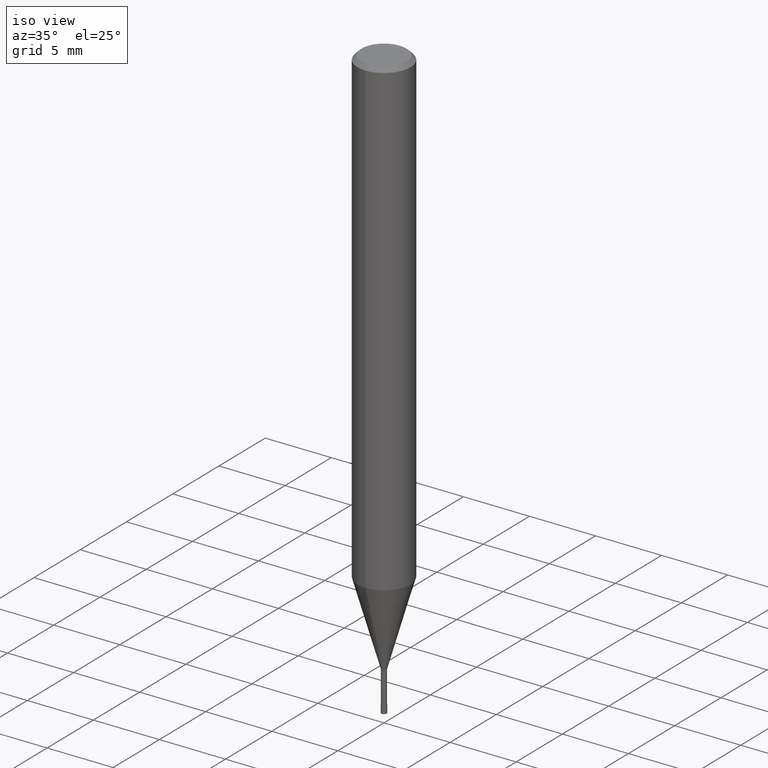
[diagram: clean part render]
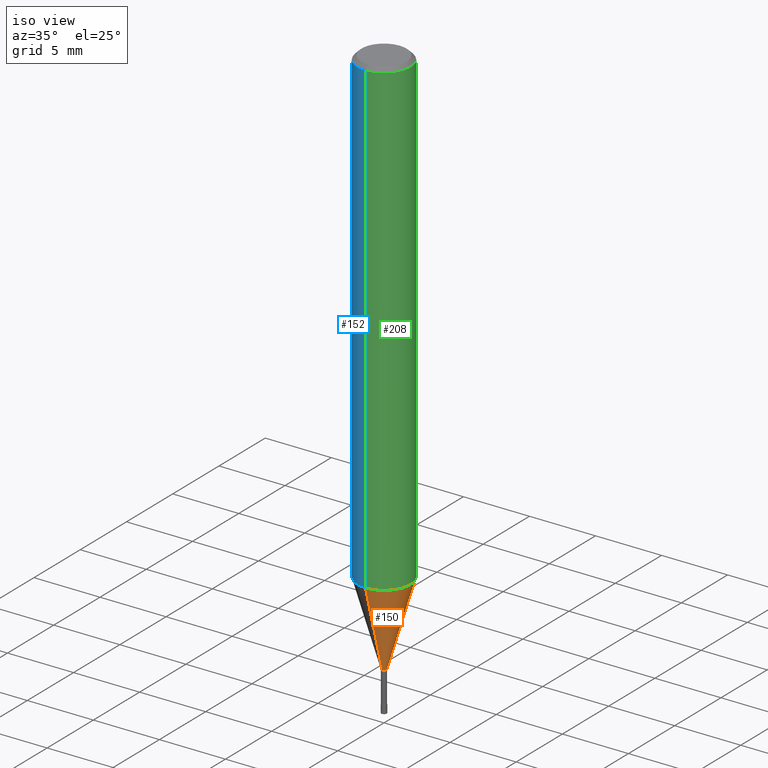
[diagram: same view with three faces highlighted in distinct colors, each labeled with its STEP entity id]
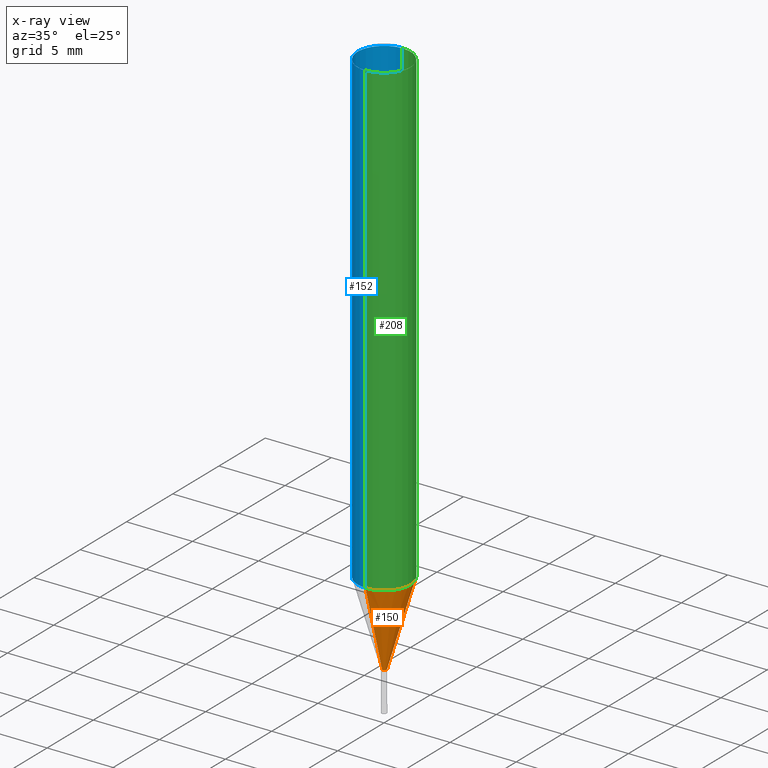
[diagram: x-ray of the same camera — body ghosted, the three highlighted faces saturated]
A machine part, iso view with three faces highlighted in distinct colors.
The next image is the same camera in x-ray (body ghosted, the three faces saturated) — at least one of them is partly hidden behind the body in this view.
Their STEP definitions:

[orange] entity #150 — the highlighted conical surface has half-angle 16.001 deg.
#108=VERTEX_POINT('',#247);
#120=VERTEX_POINT('',#259);
#126=EDGE_CURVE('',#120,#108,#265,.T.);
#130=EDGE_CURVE('',#148,#108,#270,.T.);
#134=VERTEX_POINT('',#274);
#148=VERTEX_POINT('',#292);
#150=ADVANCED_FACE('',(#294),#295,.T.);
#162=EDGE_CURVE('',#148,#134,#309,.T.);
#204=EDGE_CURVE('',#134,#120,#355,.T.);
#247=CARTESIAN_POINT('',(2.44915147732706E-016,-1.99995,-35.688));
#259=CARTESIAN_POINT('',(2.3261397690856E-017,-0.18995,-42.0));
#265=LINE('',#425,#426);
#270=CIRCLE('',#432,1.99995);
#274=CARTESIAN_POINT('',(0.0,0.18995,-42.0));
#292=CARTESIAN_POINT('',(0.0,1.99995,-35.688));
#294=FACE_OUTER_BOUND('',#456,.T.);
#295=CONICAL_SURFACE('',#457,1.09495,0.279261921280279);
#309=LINE('',#475,#476);
#355=CIRCLE('',#534,0.18995);
#425=CARTESIAN_POINT('',(1.34088272711781E-016,-1.09495,-38.844));
#426=VECTOR('',#580,1.0);
#432=AXIS2_PLACEMENT_3D('',#589,#590,#591);
#456=EDGE_LOOP('',(#619,#620,#621,#622));
#457=AXIS2_PLACEMENT_3D('',#623,#624,#625);
#475=CARTESIAN_POINT('',(-1.34088272711781E-016,1.09495,-38.844));
#476=VECTOR('',#644,1.0);
#534=AXIS2_PLACEMENT_3D('',#695,#696,#697);
#580=DIRECTION('',(3.37558135426109E-017,-0.275646238787252,0.961259148743169));
#589=CARTESIAN_POINT('',(0.0,0.0,-35.688));
#590=DIRECTION('',(0.0,0.0,-1.0));
#591=DIRECTION('',(0.0,1.0,0.0));
#619=ORIENTED_EDGE('',*,*,#162,.F.);
#620=ORIENTED_EDGE('',*,*,#130,.T.);
#621=ORIENTED_EDGE('',*,*,#126,.F.);
#622=ORIENTED_EDGE('',*,*,#204,.F.);
#623=CARTESIAN_POINT('',(0.0,0.0,-38.844));
#624=DIRECTION('',(-0.0,-0.0,1.0));
#625=DIRECTION('',(0.0,1.0,0.0));
#644=DIRECTION('',(3.37558135426109E-017,-0.275646238787252,-0.961259148743169));
#695=CARTESIAN_POINT('',(0.0,0.0,-42.0));
#696=DIRECTION('',(0.0,0.0,-1.0));
#697=DIRECTION('',(0.0,1.0,0.0));

[blue] entity #152 — the highlighted cylindrical surface (edge-blend (fillet) strip) has radius 2 mm, axis along (-0, -0, 1).
#96=EDGE_CURVE('',#182,#138,#234,.T.);
#114=EDGE_CURVE('',#140,#172,#253,.T.);
#138=VERTEX_POINT('',#279);
#140=VERTEX_POINT('',#281);
#152=ADVANCED_FACE('',(#297),#298,.T.);
#172=VERTEX_POINT('',#320);
#176=EDGE_CURVE('',#140,#138,#324,.T.);
#182=VERTEX_POINT('',#331);
#194=EDGE_CURVE('',#172,#182,#345,.T.);
#234=LINE('',#381,#382);
#253=LINE('',#409,#410);
#279=CARTESIAN_POINT('',(0.0,2.0,-35.688));
#281=CARTESIAN_POINT('',(2.44921270764475E-016,-2.0,-35.688));
#297=FACE_OUTER_BOUND('',#459,.T.);
#298=CYLINDRICAL_SURFACE('',#460,2.0);
#320=CARTESIAN_POINT('',(2.44921270764475E-016,-2.0,-0.299999999999997));
#324=CIRCLE('',#497,2.0);
#331=CARTESIAN_POINT('',(0.0,2.0,-0.299999999999997));
#345=CIRCLE('',#520,2.0);
#381=CARTESIAN_POINT('',(-2.44921270764475E-016,2.0,-17.994));
#382=VECTOR('',#553,1.0);
#409=CARTESIAN_POINT('',(2.44921270764475E-016,-2.0,-17.994));
#410=VECTOR('',#573,1.0);
#459=EDGE_LOOP('',(#627,#628,#629,#630));
#460=AXIS2_PLACEMENT_3D('',#631,#632,#633);
#497=AXIS2_PLACEMENT_3D('',#663,#664,#665);
#520=AXIS2_PLACEMENT_3D('',#688,#689,#690);
#553=DIRECTION('',(0.0,0.0,-1.0));
#573=DIRECTION('',(-0.0,-0.0,1.0));
#627=ORIENTED_EDGE('',*,*,#96,.T.);
#628=ORIENTED_EDGE('',*,*,#176,.F.);
#629=ORIENTED_EDGE('',*,*,#114,.T.);
#630=ORIENTED_EDGE('',*,*,#194,.T.);
#631=CARTESIAN_POINT('',(0.0,0.0,-17.994));
#632=DIRECTION('',(-0.0,-0.0,1.0));
#633=DIRECTION('',(0.0,1.0,0.0));
#663=CARTESIAN_POINT('',(0.0,0.0,-35.688));
#664=DIRECTION('',(0.0,0.0,-1.0));
#665=DIRECTION('',(0.0,1.0,0.0));
#688=CARTESIAN_POINT('',(0.0,0.0,-0.299999999999997));
#689=DIRECTION('',(0.0,0.0,-1.0));
#690=DIRECTION('',(0.0,1.0,0.0));

[green] entity #208 — the highlighted cylindrical surface (edge-blend (fillet) strip) has radius 2 mm, axis along (-0, -0, 1).
#96=EDGE_CURVE('',#182,#138,#234,.T.);
#114=EDGE_CURVE('',#140,#172,#253,.T.);
#138=VERTEX_POINT('',#279);
#140=VERTEX_POINT('',#281);
#172=VERTEX_POINT('',#320);
#174=EDGE_CURVE('',#182,#172,#322,.T.);
#182=VERTEX_POINT('',#331);
#200=EDGE_CURVE('',#138,#140,#351,.T.);
#208=ADVANCED_FACE('',(#360),#361,.T.);
#234=LINE('',#381,#382);
#253=LINE('',#409,#410);
#279=CARTESIAN_POINT('',(0.0,2.0,-35.688));
#281=CARTESIAN_POINT('',(2.44921270764475E-016,-2.0,-35.688));
#320=CARTESIAN_POINT('',(2.44921270764475E-016,-2.0,-0.299999999999997));
#322=CIRCLE('',#494,2.0);
#331=CARTESIAN_POINT('',(0.0,2.0,-0.299999999999997));
#351=CIRCLE('',#529,2.0);
#360=FACE_OUTER_BOUND('',#539,.T.);
#361=CYLINDRICAL_SURFACE('',#540,2.0);
#381=CARTESIAN_POINT('',(-2.44921270764475E-016,2.0,-17.994));
#382=VECTOR('',#553,1.0);
#409=CARTESIAN_POINT('',(2.44921270764475E-016,-2.0,-17.994));
#410=VECTOR('',#573,1.0);
#494=AXIS2_PLACEMENT_3D('',#660,#661,#662);
#529=AXIS2_PLACEMENT_3D('',#692,#693,#694);
#539=EDGE_LOOP('',(#707,#708,#709,#710));
#540=AXIS2_PLACEMENT_3D('',#711,#712,#713);
#553=DIRECTION('',(0.0,0.0,-1.0));
#573=DIRECTION('',(-0.0,-0.0,1.0));
#660=CARTESIAN_POINT('',(0.0,0.0,-0.299999999999997));
#661=DIRECTION('',(0.0,0.0,-1.0));
#662=DIRECTION('',(0.0,1.0,0.0));
#692=CARTESIAN_POINT('',(0.0,0.0,-35.688));
#693=DIRECTION('',(0.0,0.0,-1.0));
#694=DIRECTION('',(0.0,1.0,0.0));
#707=ORIENTED_EDGE('',*,*,#96,.F.);
#708=ORIENTED_EDGE('',*,*,#174,.T.);
#709=ORIENTED_EDGE('',*,*,#114,.F.);
#710=ORIENTED_EDGE('',*,*,#200,.F.);
#711=CARTESIAN_POINT('',(0.0,0.0,-17.994));
#712=DIRECTION('',(-0.0,-0.0,1.0));
#713=DIRECTION('',(0.0,1.0,0.0));